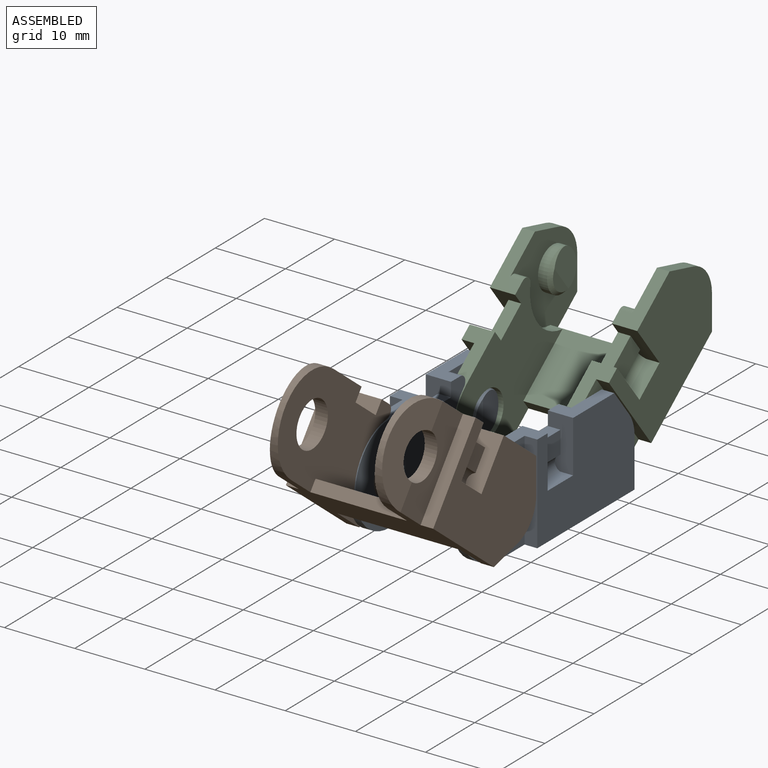
[diagram: assembled view]
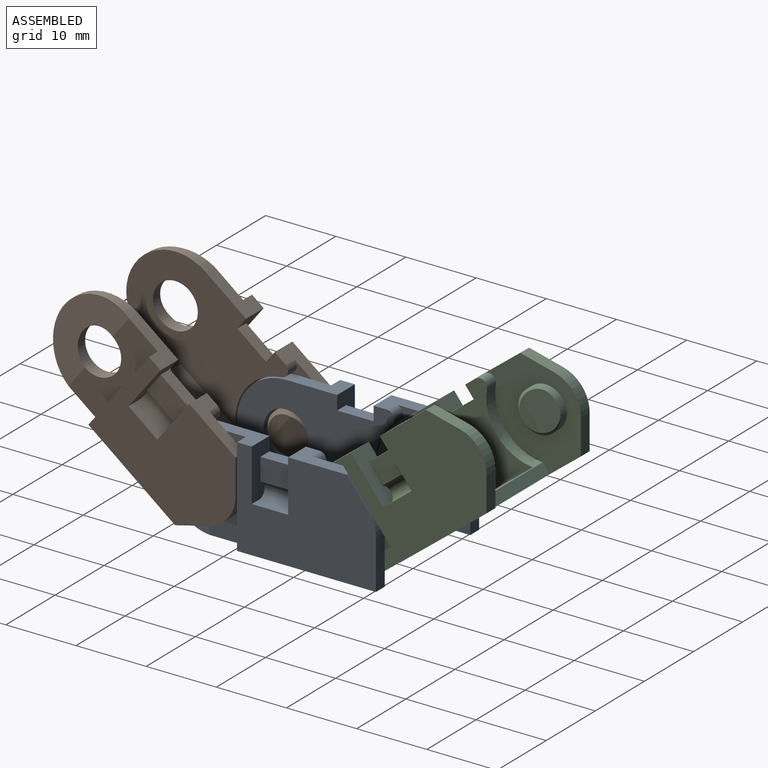
[diagram: assembled view, second angle]
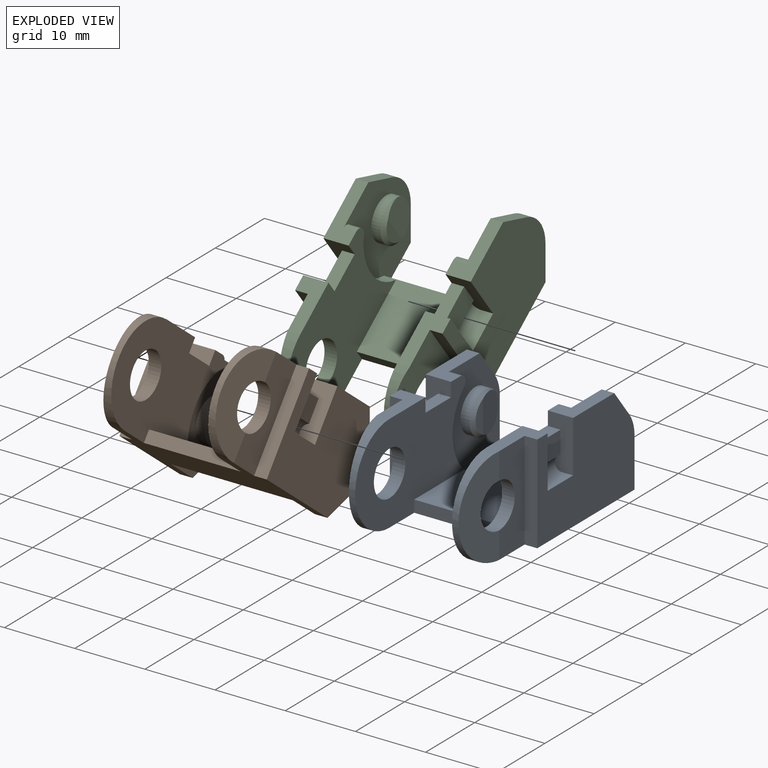
[diagram: exploded view]
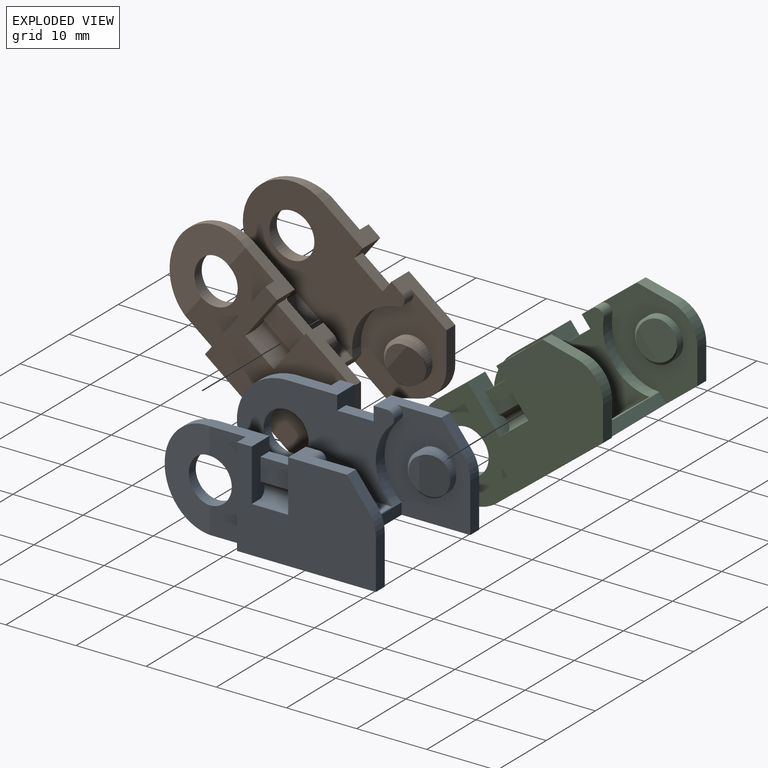
[diagram: exploded view, second angle]
ASSEMBLY  parts=3 mates=2
PART A: 53 faces, bbox 21x32x14 mm
  f0: plane 8.38x3.6mm, normal (0,0,1), area 18.5mm2, adj f3,f14,f17,f20,f28,f51
  f1: plane 8.38x3.6mm, normal (0,0,1), area 18.5mm2, adj f2,f35,f38,f40,f48,f50
  f2: plane 19.8x14mm, normal (1,0,0), area 227.5mm2, adj f1,f10,f34,f36,f37,f43,f47,f48
  f3: plane 19.8x14mm, normal (-1,0,0), area 227.5mm2, adj f0,f9,f10,f15,f16,f23,f27,f28
  f4: cylinder r=7mm len=14mm, axis (1,0,0), area 27mm2, adj f10,f15,f17,f22
  f5: plane 14x5.2mm, normal (-1,0,0), area 56.7mm2, adj f6,f9,f10,f15,f22
  f6: cylinder r=3.2mm len=6.4mm, axis (1,0,0), area 33.6mm2, adj f5,f17,f22
  f7: cylinder r=3mm len=6mm, axis (-1,0,0), area 24.2mm2, adj f8,f14,f21
  f8: cone r=2.5mm half-angle=45deg, axis (-1,0,0), area 7.1mm2, adj f7,f19,f21
  f9: plane 14x1.8mm, normal (0,-1,0), area 25.2mm2, adj f3,f5,f10,f15
  f10: plane 25x21mm, normal (0,0,-1), area 267.2mm2, adj f2,f3,f4,f5,f9,f11,f13,f14
  f11: plane 17.4x1.61mm, normal (0,1,0), area 28mm2, adj f10,f14,f18,f35
  f12: plane 13.8x10.13mm, normal (0,0,1), area 139.7mm2, adj f13,f17,f18,f38
  f13: plane 13.8x1.7mm, normal (0,-1,0), area 23.5mm2, adj f10,f12,f17,f38
  f14: plane 14x12.2mm, normal (1,0,0), area 115.4mm2, adj f0,f7,f10,f11,f16,f18,f20,f51
  f15: plane 7.3x3.6mm, normal (0,0,1), area 16.9mm2, adj f3,f4,f5,f9,f17,f27
  f16: plane 7x1.8mm, normal (0,1,0), area 12.6mm2, adj f3,f10,f14,f52
  f17: plane 22.41x14mm, normal (1,0,0), area 212.1mm2, adj f0,f4,f6,f10,f12,f13,f15,f18
  f18: cylinder r=7.2mm len=17.4mm, axis (1,0,0), area 45.1mm2, adj f11,f12,f14,f17,f20,f35,f38,f40
  f19: plane 4.58x1.5mm, normal (1,0,0), area 5mm2, adj f8,f21
  f20: cylinder r=1mm len=1.8mm, axis (1,0,0), area 4.3mm2, adj f0,f14,f17,f18
  f21: plane 5.36x4mm, normal (0.99,0.15,0), area 18.5mm2, adj f7,f8,f19
  f22: plane 14x7mm, normal (-0.99,-0.13,0), area 61.4mm2, adj f4,f5,f6
  f23: plane 5.2x1.84mm, normal (0,0,1), area 9.6mm2, adj f3,f24,f27,f28
  f24: cylinder r=1.18mm len=5.2mm, axis (0,1,0), area 15mm2, adj f23,f25,f27,f28
  f25: plane 5.2x3.19mm, normal (-1,0,0), area 16.6mm2, adj f24,f26,f27,f28
  f26: plane 5.2x1.8mm, normal (0,0,1), area 9.4mm2, adj f17,f25,f27,f28
  f27: plane 7.4x3.6mm, normal (0,1,0), area 18.2mm2, adj f3,f15,f17,f23,f24,f25,f26
  f28: plane 7.4x3.6mm, normal (0,-1,0), area 18.2mm2, adj f0,f3,f17,f23,f24,f25,f26
  f29: cylinder r=7mm len=14mm, axis (-1,0,0), area 27mm2, adj f10,f36,f38,f42
  f30: plane 14x5.2mm, normal (1,0,0), area 56.7mm2, adj f10,f31,f34,f36,f42
  f31: cylinder r=3.2mm len=6.4mm, axis (-1,0,0), area 33.6mm2, adj f30,f38,f42
  f32: cylinder r=3mm len=6mm, axis (1,0,0), area 24.2mm2, adj f33,f35,f41
  f33: cone r=2.5mm half-angle=45deg, axis (1,0,0), area 7.1mm2, adj f32,f39,f41
  f34: plane 14x1.8mm, normal (0,-1,0), area 25.2mm2, adj f2,f10,f30,f36
  f35: plane 14x12.2mm, normal (-1,0,0), area 115.4mm2, adj f1,f10,f11,f18,f32,f37,f40,f49
  f36: plane 7.3x3.6mm, normal (0,0,1), area 16.9mm2, adj f2,f29,f30,f34,f38,f47
  f37: plane 7x1.8mm, normal (0,1,0), area 12.6mm2, adj f2,f10,f35,f49
  f38: plane 22.41x14mm, normal (-1,0,0), area 212.1mm2, adj f1,f10,f12,f13,f18,f29,f31,f36
  f39: plane 4.58x1.5mm, normal (-1,0,0), area 5mm2, adj f33,f41
  f40: cylinder r=1mm len=1.8mm, axis (-1,0,0), area 4.3mm2, adj f1,f18,f35,f38
  f41: plane 5.36x4mm, normal (-0.99,0.15,0), area 18.5mm2, adj f32,f33,f39
  f42: plane 14x7mm, normal (0.99,-0.13,0), area 61.4mm2, adj f29,f30,f31
  f43: plane 5.2x1.84mm, normal (0,0,1), area 9.6mm2, adj f2,f44,f47,f48
  f44: cylinder r=1.18mm len=5.2mm, axis (0,1,0), area 15mm2, adj f43,f45,f47,f48
  f45: plane 5.2x3.19mm, normal (1,0,0), area 16.6mm2, adj f44,f46,f47,f48
  f46: plane 5.2x1.8mm, normal (0,0,1), area 9.4mm2, adj f38,f45,f47,f48
  f47: plane 7.4x3.6mm, normal (0,1,0), area 18.2mm2, adj f2,f36,f38,f43,f44,f45,f46
  f48: plane 7.4x3.6mm, normal (0,-1,0), area 18.2mm2, adj f1,f2,f38,f43,f44,f45,f46
  f49: cylinder r=5mm len=3.08mm, axis (1,0,0), area 6mm2, adj f2,f35,f37,f50
  f50: plane 3.92x3.06mm, normal (0,0.79,0.62), area 9mm2, adj f1,f2,f35,f49
  f51: plane 3.92x3.06mm, normal (0,0.79,0.62), area 9mm2, adj f0,f3,f14,f52
  f52: cylinder r=5mm len=3.08mm, axis (1,0,0), area 6mm2, adj f3,f14,f16,f51
PART B: 53 faces, bbox 21x32x14 mm
  f0: plane 19.8x14mm, normal (-1,0,0), area 216.3mm2, adj f3,f11,f12,f16,f23,f27,f28,f49
  f1: plane 14x12.2mm, normal (1,0,0), area 104.2mm2, adj f3,f9,f12,f13,f18,f20,f49,f50
  f2: plane 14x12.2mm, normal (-1,0,0), area 104.2mm2, adj f4,f12,f13,f18,f32,f38,f47,f48
  f3: plane 8.38x3.6mm, normal (0,0,1), area 18.5mm2, adj f0,f1,f17,f20,f28,f49
  f4: plane 8.38x3.6mm, normal (0,0,1), area 18.5mm2, adj f2,f5,f36,f38,f46,f48
  f5: plane 19.8x14mm, normal (1,0,0), area 216.3mm2, adj f4,f12,f34,f35,f41,f45,f46,f47
  f6: cylinder r=7mm len=14mm, axis (1,0,0), area 27mm2, adj f12,f16,f17,f22
  f7: plane 14x5.2mm, normal (-1,0,0), area 56.7mm2, adj f8,f11,f12,f16,f22
  f8: cylinder r=3.2mm len=6.4mm, axis (1,0,0), area 33.6mm2, adj f7,f17,f22
  f9: cylinder r=3mm len=6mm, axis (-1,0,0), area 24.2mm2, adj f1,f10,f21
  f10: cone r=2.5mm half-angle=45deg, axis (-1,0,0), area 7.1mm2, adj f9,f19,f21
  f11: plane 14x1.8mm, normal (0,-1,0), area 25.2mm2, adj f0,f7,f12,f16
  f12: plane 21x20.88mm, normal (0,0,-1), area 252.4mm2, adj f0,f1,f2,f5,f6,f7,f11,f13
  f13: plane 17.4x1.61mm, normal (0,1,0), area 28mm2, adj f1,f2,f12,f18
  f14: plane 13.8x10.13mm, normal (0,0,1), area 139.7mm2, adj f15,f17,f18,f36
  f15: plane 13.8x1.7mm, normal (0,-1,0), area 23.5mm2, adj f12,f14,f17,f36
  f16: plane 7.3x3.6mm, normal (0,0,1), area 16.9mm2, adj f0,f6,f7,f11,f17,f27
  f17: plane 22.41x14mm, normal (1,0,0), area 212.1mm2, adj f3,f6,f8,f12,f14,f15,f16,f18
  f18: cylinder r=7.2mm len=17.4mm, axis (1,0,0), area 45.1mm2, adj f1,f2,f13,f14,f17,f20,f36,f38
  f19: plane 4.58x1.5mm, normal (1,0,0), area 5mm2, adj f10,f21
  f20: cylinder r=1mm len=1.8mm, axis (1,0,0), area 4.3mm2, adj f1,f3,f17,f18
  f21: plane 5.36x4mm, normal (0.99,0.15,0), area 18.5mm2, adj f9,f10,f19
  f22: plane 14x7mm, normal (-0.99,-0.13,0), area 61.4mm2, adj f6,f7,f8
  f23: plane 5.2x1.84mm, normal (0,0,1), area 9.6mm2, adj f0,f24,f27,f28
  f24: cylinder r=1.18mm len=5.2mm, axis (0,1,0), area 15mm2, adj f23,f25,f27,f28
  f25: plane 5.2x3.19mm, normal (-1,0,0), area 16.6mm2, adj f24,f26,f27,f28
  f26: plane 5.2x1.8mm, normal (0,0,1), area 9.4mm2, adj f17,f25,f27,f28
  f27: plane 7.4x3.6mm, normal (0,1,0), area 18.2mm2, adj f0,f16,f17,f23,f24,f25,f26
  f28: plane 7.4x3.6mm, normal (0,-1,0), area 18.2mm2, adj f0,f3,f17,f23,f24,f25,f26
  f29: cylinder r=7mm len=14mm, axis (-1,0,0), area 27mm2, adj f12,f35,f36,f40
  f30: plane 14x5.2mm, normal (1,0,0), area 56.7mm2, adj f12,f31,f34,f35,f40
  f31: cylinder r=3.2mm len=6.4mm, axis (-1,0,0), area 33.6mm2, adj f30,f36,f40
  f32: cylinder r=3mm len=6mm, axis (1,0,0), area 24.2mm2, adj f2,f33,f39
  f33: cone r=2.5mm half-angle=45deg, axis (1,0,0), area 7.1mm2, adj f32,f37,f39
  f34: plane 14x1.8mm, normal (0,-1,0), area 25.2mm2, adj f5,f12,f30,f35
  f35: plane 7.3x3.6mm, normal (0,0,1), area 16.9mm2, adj f5,f29,f30,f34,f36,f45
  f36: plane 22.41x14mm, normal (-1,0,0), area 212.1mm2, adj f4,f12,f14,f15,f18,f29,f31,f35
  f37: plane 4.58x1.5mm, normal (-1,0,0), area 5mm2, adj f33,f39
  f38: cylinder r=1mm len=1.8mm, axis (-1,0,0), area 4.3mm2, adj f2,f4,f18,f36
  f39: plane 5.36x4mm, normal (-0.99,0.15,0), area 18.5mm2, adj f32,f33,f37
  f40: plane 14x7mm, normal (0.99,-0.13,0), area 61.4mm2, adj f29,f30,f31
  f41: plane 5.2x1.84mm, normal (0,0,1), area 9.6mm2, adj f5,f42,f45,f46
  f42: cylinder r=1.18mm len=5.2mm, axis (0,1,0), area 15mm2, adj f41,f43,f45,f46
  f43: plane 5.2x3.19mm, normal (1,0,0), area 16.6mm2, adj f42,f44,f45,f46
  f44: plane 5.2x1.8mm, normal (0,0,1), area 9.4mm2, adj f36,f43,f45,f46
  f45: plane 7.4x3.6mm, normal (0,1,0), area 18.2mm2, adj f5,f35,f36,f41,f42,f43,f44
  f46: plane 7.4x3.6mm, normal (0,-1,0), area 18.2mm2, adj f4,f5,f36,f41,f42,f43,f44
  f47: cylinder r=5mm len=6.16mm, axis (1,0,0), area 11.9mm2, adj f2,f5,f48,f51
  f48: plane 3.92x3.06mm, normal (0,0.79,0.62), area 9mm2, adj f2,f4,f5,f47
  f49: plane 3.92x3.06mm, normal (0,0.79,0.62), area 9mm2, adj f0,f1,f3,f50
  f50: cylinder r=5mm len=6.16mm, axis (1,0,0), area 11.9mm2, adj f0,f1,f49,f52
  f51: plane 3.92x3.06mm, normal (0,0.79,-0.62), area 9mm2, adj f2,f5,f12,f47
  f52: plane 3.92x3.06mm, normal (0,0.79,-0.62), area 9mm2, adj f0,f1,f12,f50
PART C: same geometry as B
PLACE A t=(-10.8,3.52,-9.52)mm fixed
PLACE B rot(axis=(-1,0,0),38deg) t=(-10.8,-20.15,-6.19)mm
PLACE C rot(axis=(1,0,0),38deg) t=(-10.8,24.23,2.43)mm
MATE revolute A.f7 <-> C.f6  axis (-1,0,0) through (-2.1,6.52,-2.52)mm
MATE revolute B.f9 <-> A.f4  axis (1,0,0) through (-2.1,-13.48,-2.52)mm
